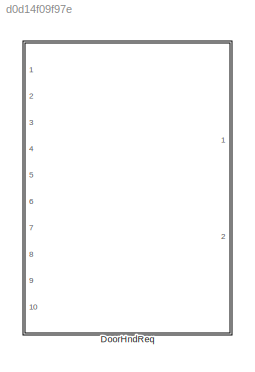
MODEL slx_d0d14f09f97e
KIND library
CONFIG AbsTol = auto
CONFIG EnableMultiTasking = off
CONFIG FixedStep = auto
CONFIG MaxStep = auto
CONFIG MinStep = auto
CONFIG RelTol = 1e-3
CONFIG SampleTimeConstraint = Unconstrained
CONFIG SolverName = VariableStepAuto
CONFIG StartTime = 0.0
CONFIG StopTime = 10.0
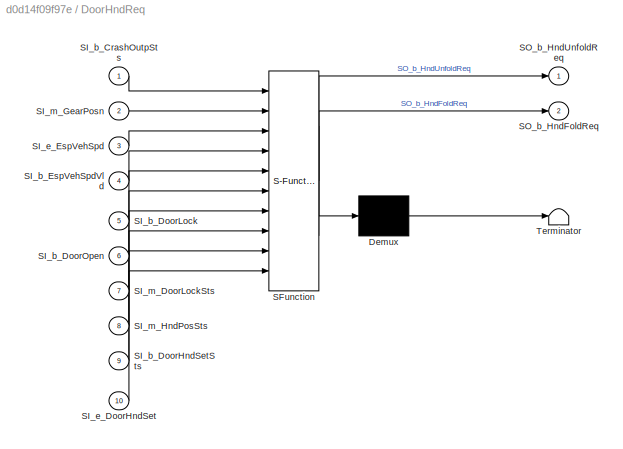
BLOCK [SubSystem] DoorHndReq
  ErrorFcn = Stateflow.Translate.translate
  PermitHierarchicalResolution = ExplicitOnly
  Ports = [10, 2]
  RequestExecContextInheritance = off
  SFBlockType = Chart
  TreatAsAtomicUnit = on
BLOCK [Demux] DoorHndReq/ Demux 
  Outputs = 1
  Ports = [1, 1]
BLOCK [S-Function] DoorHndReq/ SFunction 
  EnableBusSupport = off
  FunctionName = sf_sfun
  PortCounts = [10 3]
  Ports = [10, 3]
  SFcnIsStateOwnerBlock = off
  SFunctionDeploymentMode = off
  Tag = Stateflow S-Function 4
BLOCK [Terminator] DoorHndReq/ Terminator 
BLOCK [Inport] DoorHndReq/SI_b_CrashOutpSts
BLOCK [Inport] DoorHndReq/SI_b_DoorHndSetSts
  Port = 9
BLOCK [Inport] DoorHndReq/SI_b_DoorLock
  Port = 5
BLOCK [Inport] DoorHndReq/SI_b_DoorOpen
  Port = 6
BLOCK [Inport] DoorHndReq/SI_b_EspVehSpdVld
  Port = 4
BLOCK [Inport] DoorHndReq/SI_e_DoorHndSet
  Port = 10
BLOCK [Inport] DoorHndReq/SI_e_EspVehSpd
  Port = 3
BLOCK [Inport] DoorHndReq/SI_m_DoorLockSts
  Port = 7
BLOCK [Inport] DoorHndReq/SI_m_GearPosn
  Port = 2
BLOCK [Inport] DoorHndReq/SI_m_HndPosSts
  Port = 8
BLOCK [Outport] DoorHndReq/SO_b_HndFoldReq
  Port = 2
BLOCK [Outport] DoorHndReq/SO_b_HndUnfoldReq
CHART DoorHndReq states=14 transitions=38
  STATE_LABEL 'PowerOnDelay'
  STATE_LABEL 'Func'
  STATE_LABEL 'AntiPlay'
  STATE_LABEL 'Count\n\n\n'
  STATE_LABEL '[hasChangedTo(SI_m_HndPosSts, Hnd_Fold) || ...\nhasChangedTo(SI_m_HndPosSts, Hnd_Unfold)]'
  STATE_LABEL '{SL_e_antiPlayCount++;}'
  STATE_LABEL 'TrigAndClean\nen:\nSL_b_antiPlayFlg = 1;\nSL_e_antiPlayCount = 0;'
  STATE_LABEL 'Clean\nen:\nSL_e_antiPlayCount = 0;'
  STATE_LABEL '[before(3000, tick) &&...\nSL_e_antiPlayCount >= 10]'
  STATE_LABEL '[after(18000, tick)]\n{SL_b_antiPlayFlg = 0;}'
  STATE_LABEL '[after(3000, tick)]'
  STATE_LABEL 'Unfold'
  STATE_LABEL 'Idle\n'
  STATE_LABEL '{SO_b_HndUnfoldReq = 0;}'
  STATE_LABEL '[SI_b_DoorOpen == 0 && ...\nSI_b_DoorLock == 1]'
  STATE_LABEL '{SL_b_UnfoldReqTrig = 0;}'
  STATE_LABEL 'NormalUnfoldReq\nen:\nSO_b_HndUnfoldReq = 1;\nSL_b_UnfoldReqTrig = 1;\n'
  STATE_LABEL 'SpecUnfoldReq\nen:\nSO_b_HndUnfoldReq = 1;'
  STATE_LABEL 'CrashUnfoldReq\nen:\nSO_b_HndUnfoldReq = 1;'
  STATE_LABEL '[((SI_e_EspVehSpd <= 20 && SI_b_EspVehSpdVld == 0) || ...\nSI_m_GearPosn == Gear_P || SI_b_EspVehSpdVld == 1) && ...\n(SI_b_DoorOpen == 1 || SI_b_DoorLock == 0) && ...\nSL_b_UnfoldReqTrig == 0 && ...\nSI_m_HndPosSts != Hnd_Unfold]'
  STATE_LABEL '[after(5, tick)]'
  STATE_LABEL '[(hasChangedTo(SI_e_DoorHndSet, 4) || ...\nhasChangedTo(SI_e_DoorHndSet, 3)) && ...\nSI_m_HndPosSts != Hnd_Unfold]'
  STATE_LABEL 'after(5, tick)'
  STATE_LABEL '[hasChangedTo(SI_b_CrashOutpSts, 1) && ...\nSI_m_HndPosSts != Hnd_Unfold]'
  STATE_LABEL 'after(5, tick)'
  STATE_LABEL 'Fold'
  STATE_LABEL 'Idle\n'
  STATE_LABEL '{SO_b_HndFoldReq = 0;}'
  STATE_LABEL '[(SI_e_EspVehSpd <= 20 && ...\nSI_b_EspVehSpdVld == 0) && ...\nSI_m_DoorLockSts != Door_Lock]'
  STATE_LABEL '{SL_b_FoldReqTrig = 0;}'
  STATE_LABEL 'FoldReq\nen:\nSO_b_HndFoldReq = 1;\nSL_b_FoldReqTrig = 1;'
  STATE_LABEL '[((SI_e_EspVehSpd > 20 && SI_b_EspVehSpdVld == 0) || ...\nSI_m_DoorLockSts == Door_Lock) && ...\nSI_m_HndPosSts != Hnd_Fold && ...\nSL_b_antiPlayFlg == 0 && ...\nSL_b_FoldReqTrig == 0 && ...\nSI_b_DoorHndSetSts == 0]'
  STATE_LABEL '[after(5, tick)]'
  STATE_LABEL 'AntiPlay'
  STATE_LABEL 'Count\n\n\n'
  STATE_LABEL '[hasChangedTo(SI_m_HndPosSts, Hnd_Fold) || ...\nhasChangedTo(SI_m_HndPosSts, Hnd_Unfold)]'
  STATE_LABEL '{SL_e_antiPlayCount++;}'
  STATE_LABEL 'TrigAndClean\nen:\nSL_b_antiPlayFlg = 1;\nSL_e_antiPlayCount = 0;'
  STATE_LABEL 'Clean\nen:\nSL_e_antiPlayCount = 0;'
  STATE_LABEL '[before(3000, tick) &&...\nSL_e_antiPlayCount >= 10]'
CHART  states=0 transitions=0
